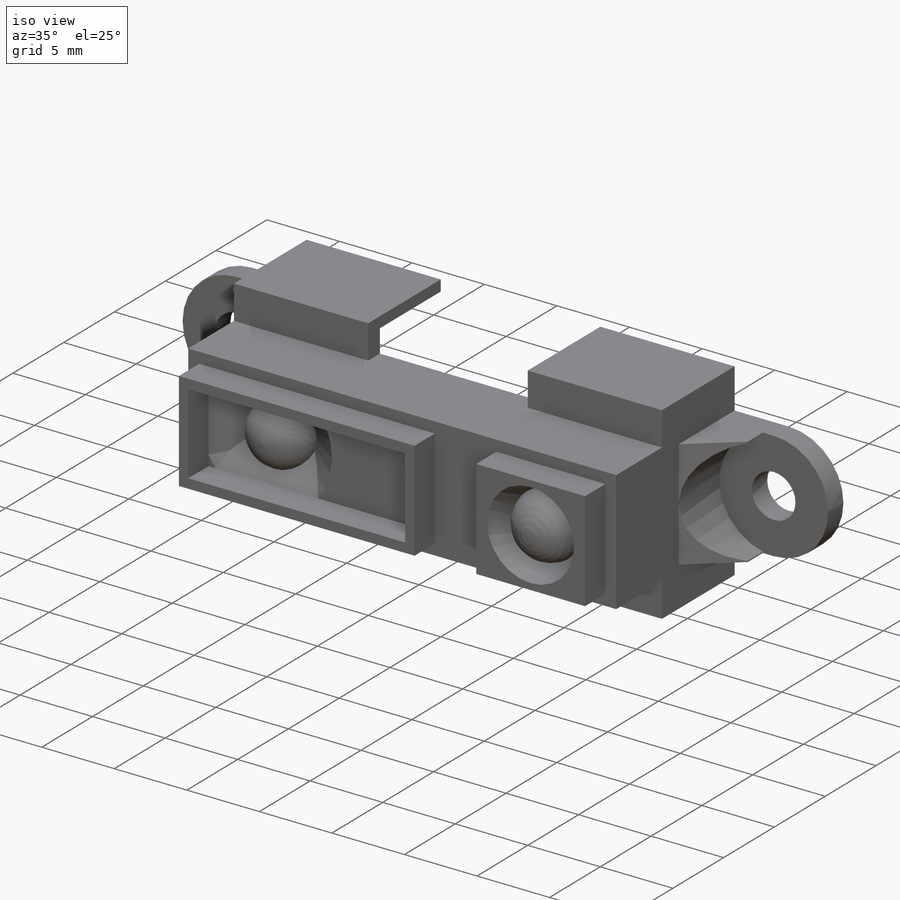
[diagram: iso view]
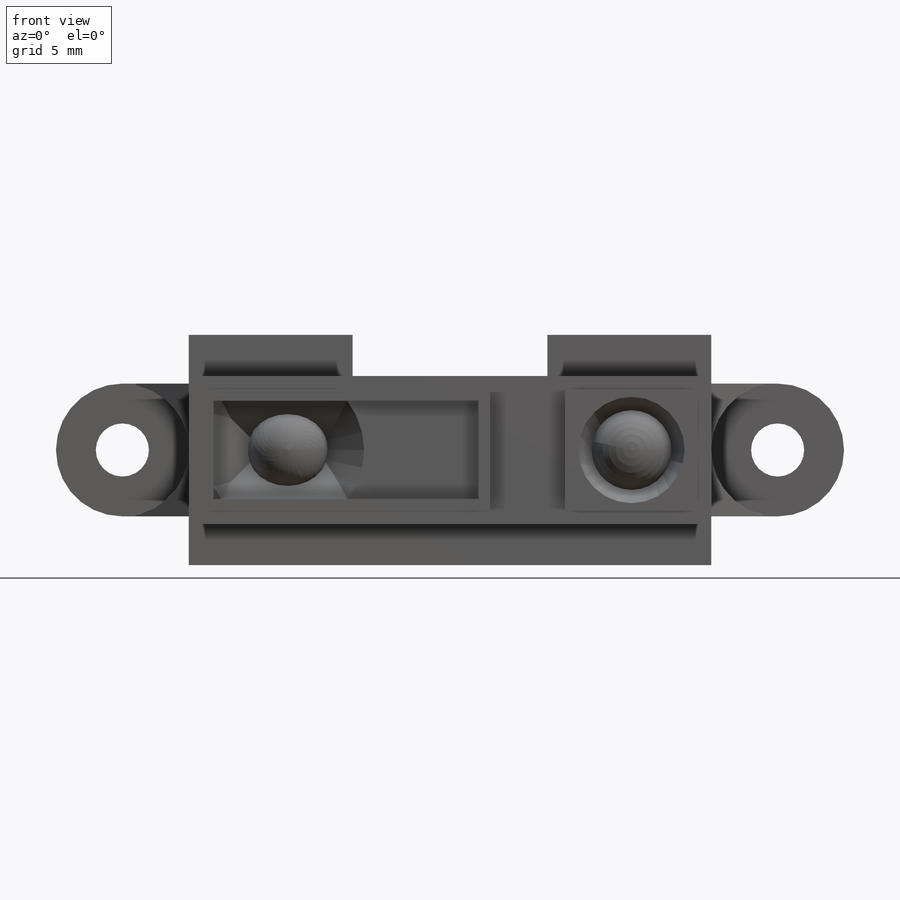
[diagram: front view]
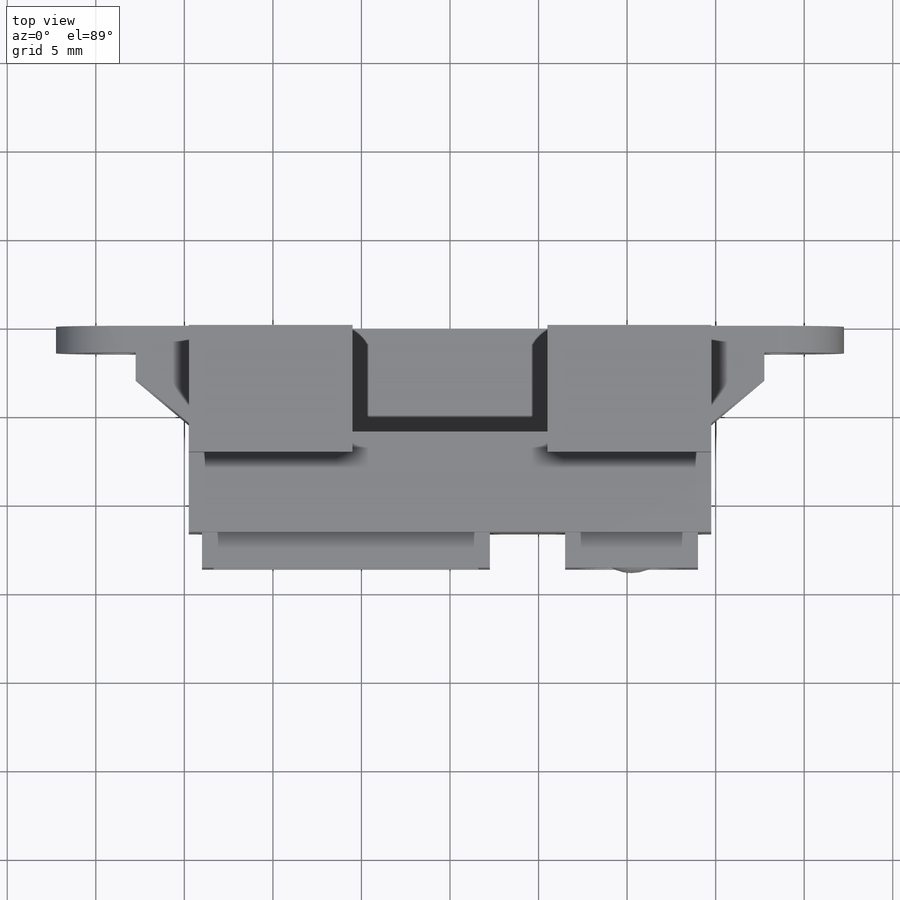
[diagram: top view]
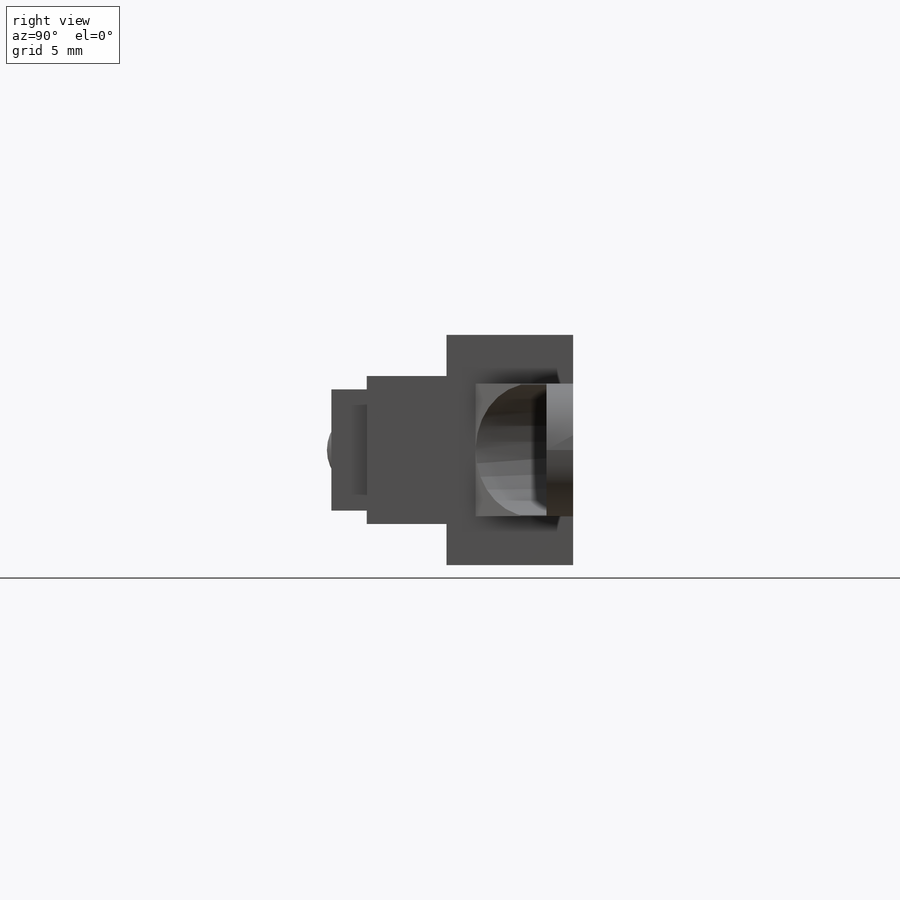
[diagram: right view]
SOLIDWORKS PART (.sldprt)
format: sldprt  version: not decoded by parser v0  size: 543,744 bytes
history: native  units: mm
features: sketch x14, extrude x7, cut_extrude x6, plane x3, fillet x3, material x1, chamfer x1, mirror x1 (+13 scaffold rows collapsed)
feature tree (49):
  scaffold x13  (default folders/planes/origin — collapsed)
  material  "PVC rígido"
  plane  "Alzado"
  plane  "Planta"
  plane  "Vista lateral"
  sketch  "Croquis1"  dims[D1=29.5mm D2=13.0mm]
  extrude  "Extruir1"  Depth=7.15mm
  sketch  "Croquis2"  dims[D1=8.35mm D2=29.5mm]
  extrude  "Extruir2"  Depth=4.5mm
  sketch  "Croquis3"  dims[D1=0.75mm D2=0.75mm D3=0.75mm D4=16.25mm D5=0.75mm D6=0.75mm D7=0.75mm D8=7.5mm D9=4.75mm]
  extrude  "Extruir3"  Depth=2mm
  sketch  "Croquis4"  dims[D1=0.65mm D2=0.65mm D3=0.65mm D4=0.65mm]
  cut_extrude  "Extruir4"  Depth=2mm
  sketch  "Croquis5"  dims[D1=6.0mm]
  cut_extrude  "Extruir5"  Depth=2mm
  sketch  "Croquis6"  dims[D1=9.0mm D2=4.0mm]
  cut_extrude  "Extruir6"  Depth=1.5mm
  sketch  "Croquis7"  dims[D1=0.75mm D2=0.75mm D3=11.0mm D4=5.0mm]
  cut_extrude  "Extruir7"  Depth=6mm
  sketch  "Croquis8"  dims[D1=4.5mm]
  extrude  "Extruir8"  Depth=2.25mm
  fillet  "Redondeo1"  Radius=2.27mm
  sketch  "Croquis9"  dims[D1=~2.065589mm]
  extrude  "Extruir9"  Depth=2.25mm
  fillet  "Redondeo2"  Radius=2.25mm
  sketch  "Croquis10"  dims[D4=3.0mm D1=7.5mm D2=2.75mm D3=7.5mm]
  extrude  "Extruir10"  Depth=1.5mm
  sketch  "Croquis11"  dims[D1=3.0mm]
  extrude  "Extruir11"  Depth=4mm
  chamfer  "Chaflán1"  Distance=3mm Angle=40deg
  sketch  "Croquis12"  dims[D1=7.5mm]
  cut_extrude  "Extruir12"  Depth=4mm
  fillet  "Redondeo3"  Radius=3.75mm
  mirror  "Simetría2"
  sketch  "Croquis17"  dims[D1=9.25mm D2=9.25mm]
  cut_extrude  "Extruir15"  [1 undecoded]
  sketch  "Croquis18"
decode coverage: 29 of 32 modeling features carry decoded parameters
note: ~ marks probable driven/reference dimensions
note: 1 parameter value undecoded
note: suppression state not decoded; provenance and decode notes live in map.json
